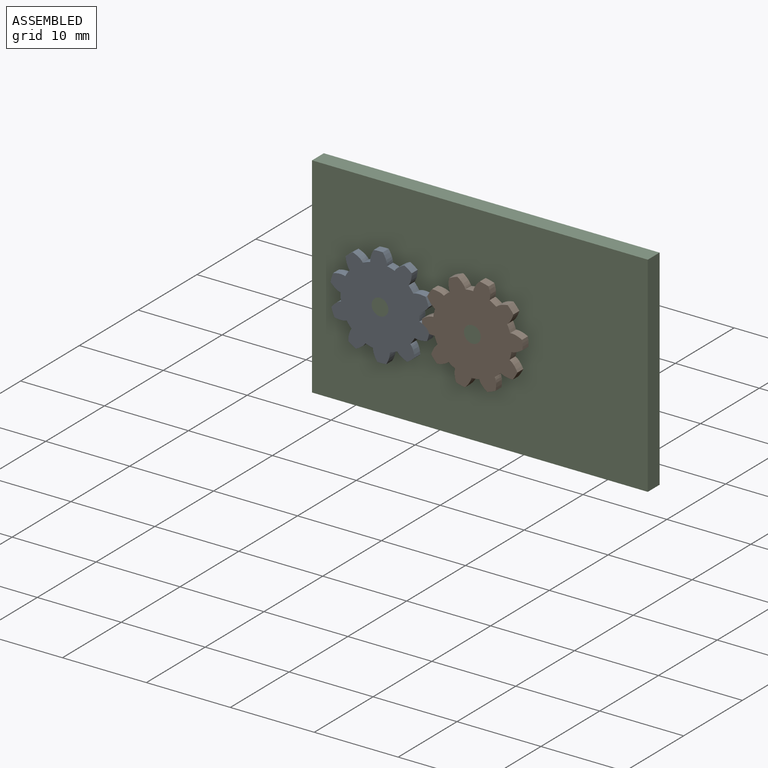
[diagram: assembled view]
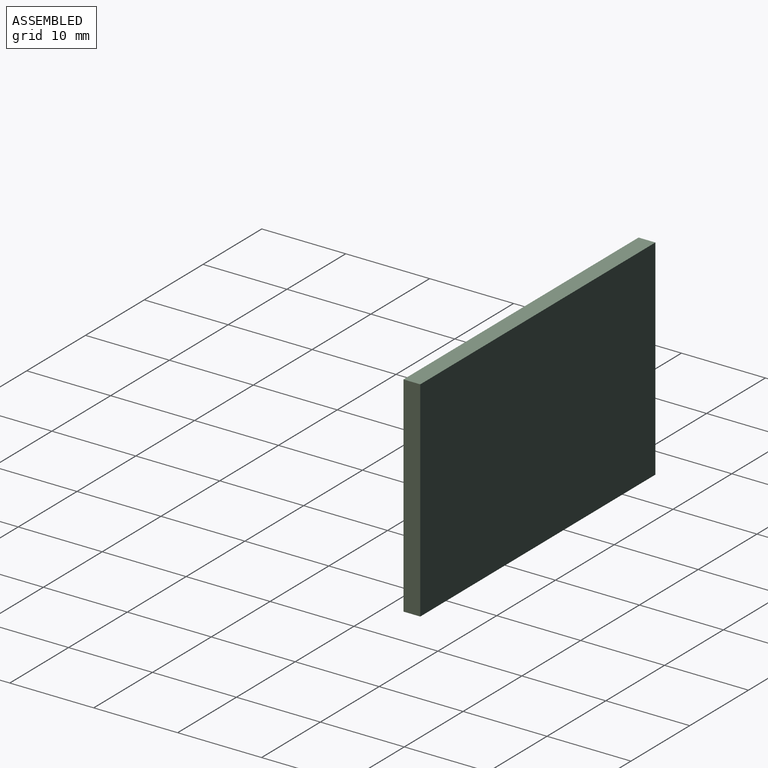
[diagram: assembled view, second angle]
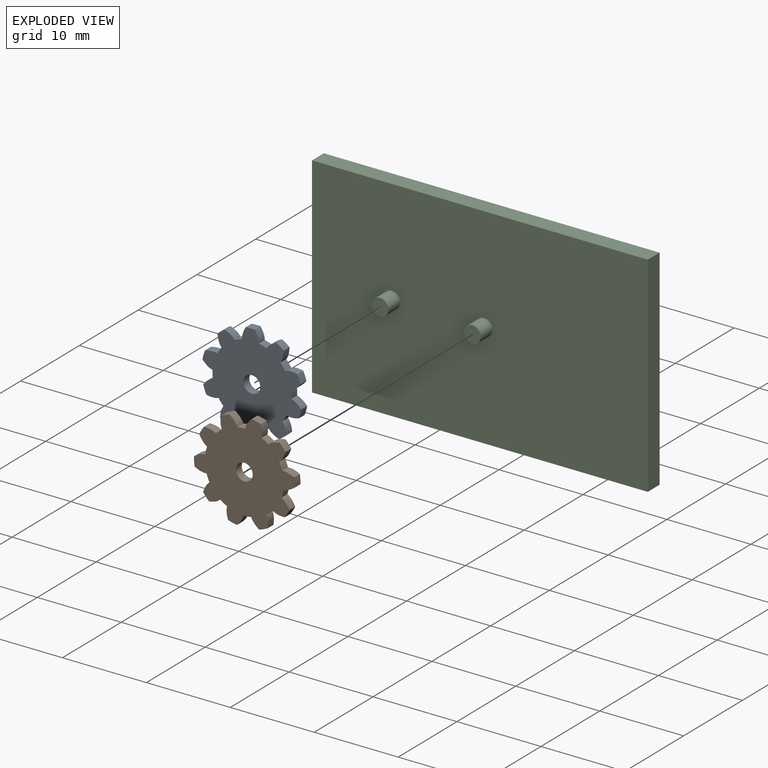
[diagram: exploded view]
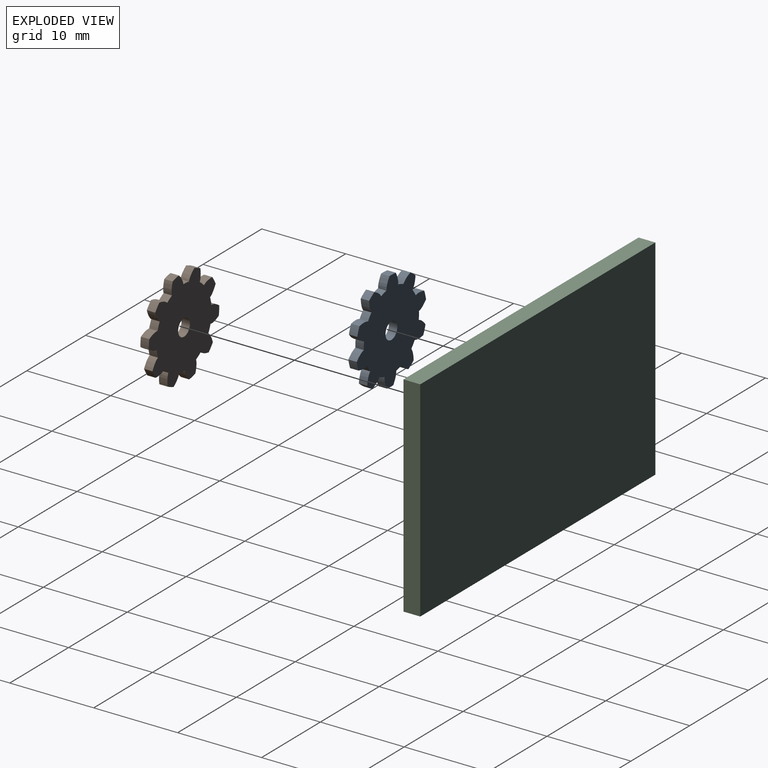
[diagram: exploded view, second angle]
ASSEMBLY  parts=3 mates=3
PART A: 43 faces, bbox 12x1x11.9 mm
  f0: cylinder r=4.7mm len=1mm, axis (0,1,0), area 1mm2, adj f14,f15,f30,f33
  f1: cylinder r=4.7mm len=1mm, axis (0,1,0), area 1mm2, adj f14,f15,f32,f36
  f2: cylinder r=4.7mm len=1mm, axis (0,1,0), area 1mm2, adj f14,f15,f35,f39
  f3: cylinder r=4.7mm len=1mm, axis (0,1,0), area 1mm2, adj f14,f15,f38,f40
  f4: cylinder r=4.7mm len=1mm, axis (0,1,0), area 1mm2, adj f14,f15,f18,f41
  f5: cylinder r=4.7mm len=1mm, axis (0,1,0), area 1mm2, adj f14,f15,f17,f21
  f6: cylinder r=4.7mm len=1mm, axis (0,1,0), area 1mm2, adj f14,f15,f20,f24
  f7: cylinder r=4.7mm len=1mm, axis (0,1,0), area 1mm2, adj f14,f15,f23,f27
  f8: cylinder r=4.7mm len=1mm, axis (0,1,0), area 1mm2, adj f9,f14,f15,f26
  f9: extruded ~1.45x1mm, area 1.5mm2, adj f8,f13,f14,f15
  f10: cylinder r=4.7mm len=1mm, axis (0,1,0), area 1mm2, adj f11,f14,f15,f29
  f11: extruded ~1.26x1mm, area 1.5mm2, adj f10,f13,f14,f15
  f12: cylinder r=1mm len=2mm, axis (0,1,0), area 6.3mm2, adj f14,f15
  f13: cylinder r=6mm len=1.06mm, axis (0,1,0), area 1.1mm2, adj f9,f11,f14,f15
  f14: plane 12x11.91mm, normal (0,-1,0), area 88.4mm2, adj f0,f1,f2,f3,f4,f5,f6,f7
  f15: plane 12x11.91mm, normal (0,1,0), area 88.4mm2, adj f0,f1,f2,f3,f4,f5,f6,f7
  f16: cylinder r=6mm len=1mm, axis (0,1,0), area 1.1mm2, adj f14,f15,f17,f18
  f17: extruded ~1.45x1mm, area 1.5mm2, adj f5,f14,f15,f16
  f18: extruded ~1.08x1mm, area 1.5mm2, adj f4,f14,f15,f16
  f19: cylinder r=6mm len=1mm, axis (0,1,0), area 1.1mm2, adj f14,f15,f20,f21
  f20: extruded ~1.09x1mm, area 1.5mm2, adj f6,f14,f15,f19
  f21: extruded ~1.42x1mm, area 1.5mm2, adj f5,f14,f15,f19
  f22: cylinder r=6mm len=1.07mm, axis (0,1,0), area 1.1mm2, adj f14,f15,f23,f24
  f23: extruded ~1.42x1mm, area 1.5mm2, adj f7,f14,f15,f22
  f24: extruded ~1.33x1mm, area 1.5mm2, adj f6,f14,f15,f22
  f25: cylinder r=6mm len=1mm, axis (0,1,0), area 1.1mm2, adj f14,f15,f26,f27
  f26: extruded ~1.33x1mm, area 1.5mm2, adj f8,f14,f15,f25
  f27: extruded ~1.26x1mm, area 1.5mm2, adj f7,f14,f15,f25
  f28: cylinder r=6mm len=1mm, axis (0,1,0), area 1.1mm2, adj f14,f15,f29,f30
  f29: extruded ~1.08x1mm, area 1.5mm2, adj f10,f14,f15,f28
  f30: extruded ~1.45x1mm, area 1.5mm2, adj f0,f14,f15,f28
  f31: cylinder r=6mm len=1mm, axis (0,1,0), area 1.1mm2, adj f14,f15,f32,f33
  f32: extruded ~1.09x1mm, area 1.5mm2, adj f1,f14,f15,f31
  f33: extruded ~1.42x1mm, area 1.5mm2, adj f0,f14,f15,f31
  f34: cylinder r=6mm len=1.07mm, axis (0,1,0), area 1.1mm2, adj f14,f15,f35,f36
  f35: extruded ~1.42x1mm, area 1.5mm2, adj f2,f14,f15,f34
  f36: extruded ~1.33x1mm, area 1.5mm2, adj f1,f14,f15,f34
  f37: cylinder r=6mm len=1mm, axis (0,1,0), area 1.1mm2, adj f14,f15,f38,f39
  f38: extruded ~1.33x1mm, area 1.5mm2, adj f3,f14,f15,f37
  f39: extruded ~1.26x1mm, area 1.5mm2, adj f2,f14,f15,f37
  f40: extruded ~1.45x1mm, area 1.5mm2, adj f3,f14,f15,f42
  f41: extruded ~1.26x1mm, area 1.5mm2, adj f4,f14,f15,f42
  f42: cylinder r=6mm len=1.06mm, axis (0,1,0), area 1.1mm2, adj f14,f15,f40,f41
PART B: same geometry as A
PART C: 10 faces, bbox 40x4x25 mm
  f0: plane 40x2mm, normal (0,0,1), area 80mm2, adj f1,f3,f4,f5
  f1: plane 25x2mm, normal (-1,0,0), area 50mm2, adj f0,f2,f4,f5
  f2: plane 40x2mm, normal (0,0,-1), area 80mm2, adj f1,f3,f4,f5
  f3: plane 25x2mm, normal (1,0,0), area 50mm2, adj f0,f2,f4,f5
  f4: plane 40x25mm, normal (0,1,0), area 1000mm2, adj f0,f1,f2,f3
  f5: plane 40x25mm, normal (0,-1,0), area 993.7mm2, adj f0,f1,f2,f3,f6,f8
  f6: cylinder r=1mm len=2mm, axis (0,1,0), area 12.6mm2, adj f5,f7
  f7: plane 2x2mm, normal (0,-1,0), area 3.1mm2, adj f6
  f8: cylinder r=1mm len=2mm, axis (0,1,0), area 12.6mm2, adj f5,f9
  f9: plane 2x2mm, normal (0,-1,0), area 3.1mm2, adj f8
PLACE A rot(axis=(0,-1,0),25.8deg) t=(5.2,11.89,-10.73)mm
PLACE B rot(axis=(0,1,0),25.8deg) t=(16.2,11.89,-10.73)mm
PLACE C t=(15.7,12.89,-10.73)mm fixed
MATE revolute C.f6 <-> A.f12  axis (0,-1,0) through (5.2,10.89,-10.73)mm
MATE revolute C.f8 <-> B.f12  axis (0,-1,0) through (16.2,10.89,-10.73)mm
MATE planar B.f12 <-> A.f12  axis (0,1,0) through (16.2,10.89,-10.73)mm
